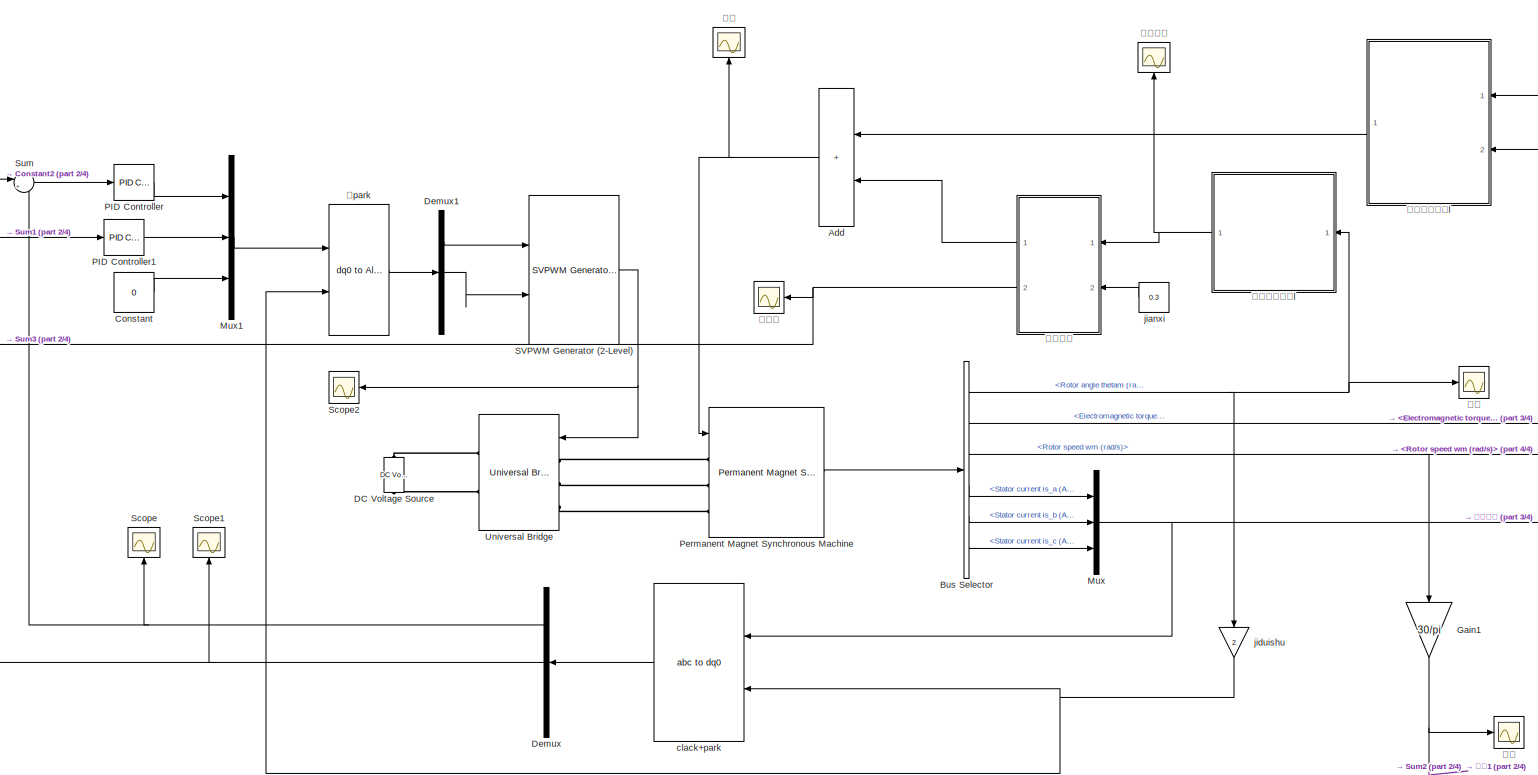
[diagram: root canvas - part 1/4, center side, full height]
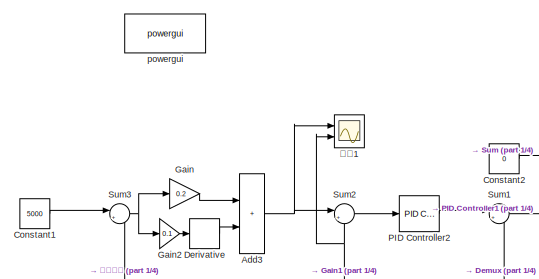
[diagram: root canvas - part 2/4, top left region]
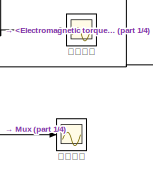
[diagram: root canvas - part 3/4, middle right region]
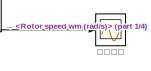
[diagram: root canvas - part 4/4, middle right region]
MODEL slx_32f60f15871e
KIND model
CONFIG AbsTol = auto
CONFIG EnableMultiTasking = off
CONFIG FixedStep = 5e-5
CONFIG MaxStep = auto
CONFIG MinStep = auto
CONFIG RelTol = 1e-3
CONFIG SampleTimeConstraint = Unconstrained
CONFIG SolverName = FixedStepAuto
CONFIG StartTime = 0.0
CONFIG StopTime = 5
WORKSPACE source: mxarray member
WORKSPACE Bv = 0.001086
WORKSPACE L = 0.005
WORKSPACE Tc = 0.0192
WORKSPACE Ts = 0.0387
WORKSPACE Ws = 1
WORKSPACE deta = 1
WORKSPACE ng = 0.9
WORKSPACE ns = 0.9
BLOCK [Sum] Add
  IconShape = rectangular
  Ports = [2, 1]
BLOCK [Sum] Add3
  IconShape = rectangular
  Ports = [2, 1]
BLOCK [BusSelector] Bus Selector
  OutputSignals = Rotor angle thetam (rad),Electromagnetic torque Te (N*m),Rotor speed wm (rad/s),Stator current is_a (A),Stator current is_b (A),Stator current is_c (A)
  Ports = [1, 6]
BLOCK [Constant] Constant
  SampleTime = -1
  Value = 0
  VectorParams1D = off
BLOCK [Constant] Constant1
  Value = 5000
BLOCK [Constant] Constant2
  Value = 0
BLOCK [Reference] DC Voltage Source  REF=powerlib/Electrical Sources/DC Voltage Source
  NameLocation = right
  Ports = [0, 0, 0, 0, 0, 1, 1]
  SourceBlock = powerlib/Electrical Sources/DC Voltage Source
  SourceType = DC Voltage Source
BLOCK [Demux] Demux
  Outputs = 3
  Ports = [1, 3]
BLOCK [Demux] Demux1
  Outputs = 3
  Ports = [1, 3]
BLOCK [Derivative] Derivative
BLOCK [Gain] Gain
  Gain = 0.2
BLOCK [Gain] Gain1
  Gain = 30/pi
  NameLocation = left
BLOCK [Gain] Gain2
  Gain = 0.1
BLOCK [Mux] Mux
  DisplayOption = bar
  Inputs = 3
  Ports = [3, 1]
BLOCK [Mux] Mux1
  DisplayOption = bar
  Inputs = 3
  Ports = [3, 1]
BLOCK [Reference] PID Controller  REF=pid_lib/PID Controller
  Ports = [1, 1]
  SourceBlock = pid_lib/PID Controller
  SourceType = PID 1dof
BLOCK [Reference] PID Controller1  REF=pid_lib/PID Controller
  Ports = [1, 1]
  SourceBlock = pid_lib/PID Controller
  SourceType = PID 1dof
BLOCK [Reference] PID Controller2  REF=pid_lib/PID Controller
  Ports = [1, 1]
  SourceBlock = pid_lib/PID Controller
  SourceType = PID 1dof
BLOCK [Reference] Permanent Magnet Synchronous Machine  REF=powerlib/Machines/Permanent Magnet Synchronous Machine
  Ports = [1, 1, 0, 0, 0, 3]
  SourceBlock = powerlib/Machines/Permanent Magnet Synchronous Machine
  SourceType = Permanent Magnet Synchronous Machine
BLOCK [Reference] SVPWM Generator (2-Level)  REF=powerlib_meascontrol/Pulse & Signal Generators/SVPWM Generator (2-Level)
  Ports = [2, 1]
  SourceBlock = powerlib_meascontrol/Pulse & Signal Generators/SVPWM Generator (2-Level)
  SourceType = SVPWM Generator (2-Level)
BLOCK [Scope] Scope
  Floating = off
  NameLocation = right
  NumInputPorts = 1
  Ports = [1]
  ScopeSpecificationString = Simulink.scopes.TimeScopeBlockCfg('CurrentConfiguration', extmgr.ConfigurationSet(extmgr.Configuration('Core','General UI',true),extmgr.Configuration('Core','Source UI',true),extmgr.Configuration('Sources','WiredSimulink',true,'DataLoggingVariableName','ScopeData5'),extmgr.Configuration('Visuals','Time Domain',true,'SerializedDisplays',{struct('MinYLimReal','-19.37793','MaxYLimReal','29.91479','YL...<+1470ch>
BLOCK [Scope] Scope1
  Floating = off
  NameLocation = right
  NumInputPorts = 1
  Ports = [1]
  ScopeSpecificationString = Simulink.scopes.TimeScopeBlockCfg('CurrentConfiguration', extmgr.ConfigurationSet(extmgr.Configuration('Core','General UI',true),extmgr.Configuration('Core','Source UI',true),extmgr.Configuration('Sources','WiredSimulink',true,'DataLoggingVariableName','ScopeData2'),extmgr.Configuration('Visuals','Time Domain',true,'SerializedDisplays',{struct('MinYLimReal','-7.68628','MaxYLimReal','69.17649','YLa...<+1422ch>
BLOCK [Scope] Scope2
  Floating = off
  NameLocation = top
  NumInputPorts = 1
  Ports = [1]
  ScopeSpecificationString = Simulink.scopes.TimeScopeBlockCfg('CurrentConfiguration', extmgr.ConfigurationSet(extmgr.Configuration('Core','General UI',true),extmgr.Configuration('Core','Source UI',true),extmgr.Configuration('Sources','WiredSimulink',true,'DataLoggingVariableName','ScopeData3'),extmgr.Configuration('Visuals','Time Domain',true,'SerializedDisplays',{struct('MinYLimReal','-0.125','MaxYLimReal','1.125','YLabelRe...<+1622ch>
BLOCK [Sum] Sum
  Inputs = |+-
  Ports = [2, 1]
BLOCK [Sum] Sum1
  Inputs = |+-
  Ports = [2, 1]
BLOCK [Sum] Sum2
  Inputs = |+-
  Ports = [2, 1]
BLOCK [Sum] Sum3
  Inputs = |+-
  Ports = [2, 1]
BLOCK [Reference] Universal Bridge  REF=powerlib/Power Electronics/Universal Bridge
  Ports = [1, 0, 0, 0, 0, 3, 2]
  SourceBlock = powerlib/Power Electronics/Universal Bridge
  SourceType = Universal Bridge
BLOCK [Reference] clack+park  REF=powerlib_meascontrol/Transformations/abc to dq0
  Ports = [2, 1]
  SourceBlock = powerlib_meascontrol/Transformations/abc to dq0
  SourceType = abc to dq0 Transformation
BLOCK [Constant] jianxi
  Value = 0.3
BLOCK [Gain] jiduishu
  Gain = 2
  NameLocation = left
BLOCK [Reference] powergui  REF=powerlib/powergui
  Ports = []
  Priority = 1
  SourceBlock = powerlib/powergui
  SourceType = PSB option menu block
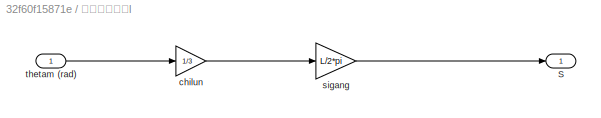
BLOCK [SubSystem] 传动机构模型l
  Ports = [1, 1]
BLOCK [Inport] 传动机构模型l/ thetam (rad)
BLOCK [Outport] 传动机构模型l/S
  VectorParamsAs1DForOutWhenUnconnected = off
BLOCK [Gain] 传动机构模型l/chilun
  Gain = 1/3
BLOCK [Gain] 传动机构模型l/sigang
  Gain = L/2*pi
BLOCK [Reference] 反park  REF=powerlib_meascontrol/Transformations/dq0 to Alpha-Beta-Zero
  Ports = [2, 1]
  SourceBlock = powerlib_meascontrol/Transformations/dq0 to Alpha-Beta-Zero
  SourceType = dq0 to Alpha-Beta-Zero Transformation
BLOCK [Scope] 夹紧力
  Floating = off
  NumInputPorts = 1
  Ports = [1]
  ScopeSpecificationString = Simulink.scopes.TimeScopeBlockCfg('CurrentConfiguration', extmgr.ConfigurationSet(extmgr.Configuration('Core','General UI',true),extmgr.Configuration('Core','Source UI',true),extmgr.Configuration('Sources','WiredSimulink',true),extmgr.Configuration('Visuals','Time Domain',true,'SerializedDisplays',{struct('MinYLimReal','-617.35214','MaxYLimReal','5556.16923','YLabelReal','','MinYLimMag',' 0.00000'...<+1443ch>
BLOCK [Scope] 定子电流
  Floating = off
  NumInputPorts = 1
  Ports = [1]
  ScopeSpecificationString = Simulink.scopes.TimeScopeBlockCfg('CurrentConfiguration', extmgr.ConfigurationSet(extmgr.Configuration('Core','General UI',true),extmgr.Configuration('Core','Source UI',true),extmgr.Configuration('Sources','WiredSimulink',true,'DataLoggingVariableName','ScopeData1'),extmgr.Configuration('Visuals','Time Domain',true,'SerializedDisplays',{struct('MinYLimReal','-76.07517','MaxYLimReal','76.02422','YL...<+1544ch>
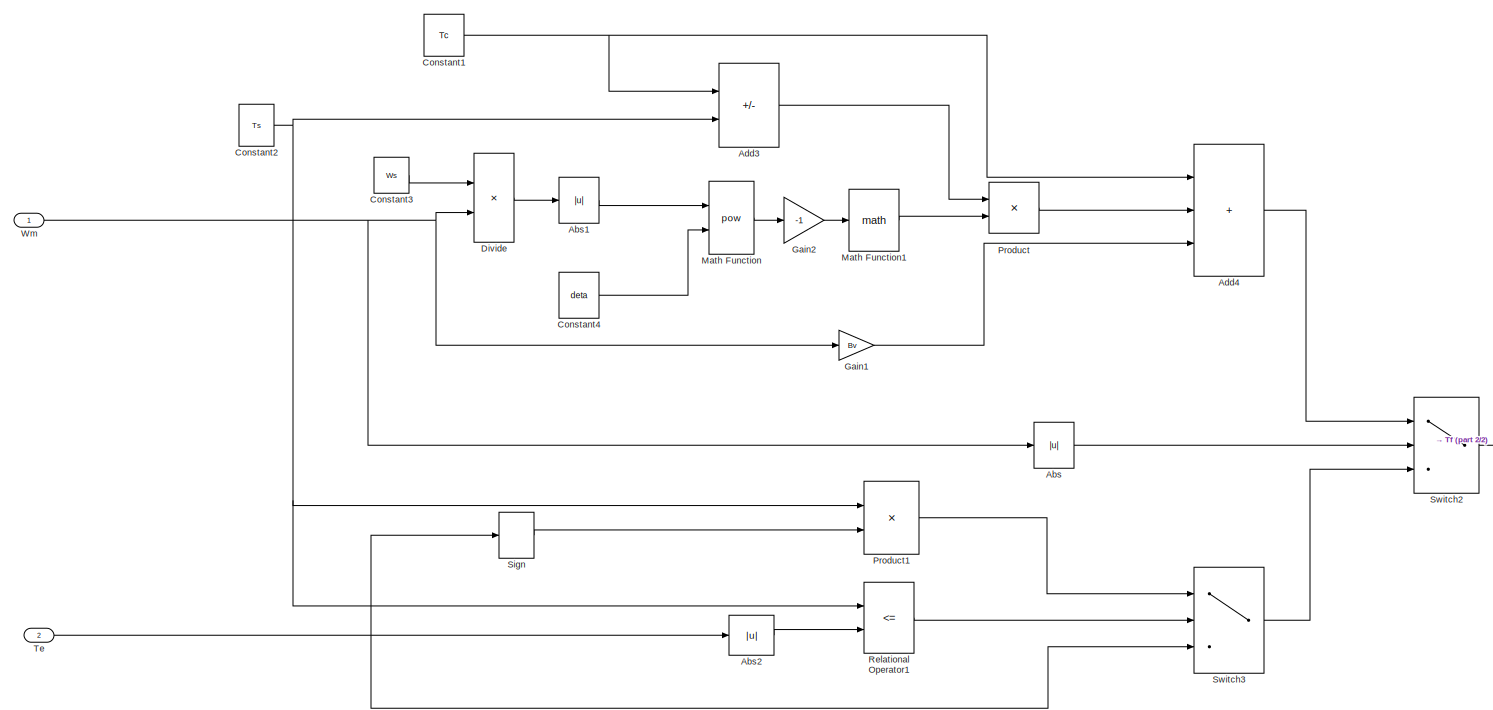
[diagram: 电机摩擦模型l - part 1/2, most of the canvas]
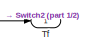
[diagram: 电机摩擦模型l - part 2/2, middle right region]
BLOCK [SubSystem] 电机摩擦模型l
  Ports = [2, 1]
BLOCK [Abs] 电机摩擦模型l/Abs
  SaturateOnIntegerOverflow = off
BLOCK [Abs] 电机摩擦模型l/Abs1
  SaturateOnIntegerOverflow = off
BLOCK [Abs] 电机摩擦模型l/Abs2
  SaturateOnIntegerOverflow = off
BLOCK [Sum] 电机摩擦模型l/Add3
  IconShape = rectangular
  Inputs = -+
  Ports = [2, 1]
BLOCK [Sum] 电机摩擦模型l/Add4
  IconShape = rectangular
  Inputs = +++
  Ports = [3, 1]
BLOCK [Constant] 电机摩擦模型l/Constant1
  Value = Tc
BLOCK [Constant] 电机摩擦模型l/Constant2
  Value = Ts
BLOCK [Constant] 电机摩擦模型l/Constant3
  Value = Ws
BLOCK [Constant] 电机摩擦模型l/Constant4
  Value = deta
BLOCK [Product] 电机摩擦模型l/Divide
  Inputs = /*
  Ports = [2, 1]
BLOCK [Gain] 电机摩擦模型l/Gain1
  Gain = Bv
BLOCK [Gain] 电机摩擦模型l/Gain2
  Gain = -1
BLOCK [Math] 电机摩擦模型l/Math Function
  Operator = pow
  Ports = [2, 1]
  SignedPower = on
BLOCK [Math] 电机摩擦模型l/Math Function1
  Ports = [1, 1]
  SignedPower = on
BLOCK [Product] 电机摩擦模型l/Product
  Ports = [2, 1]
BLOCK [Product] 电机摩擦模型l/Product1
  Ports = [2, 1]
BLOCK [RelationalOperator] 电机摩擦模型l/Relational Operator1
  InputSameDT = off
  Operator = <=
  OutDataTypeStr = boolean
  Ports = [2, 1]
  RndMeth = Simplest
BLOCK [Signum] 电机摩擦模型l/Sign
BLOCK [Switch] 电机摩擦模型l/Switch2
  Criteria = u2 > Threshold
  InputSameDT = off
  SaturateOnIntegerOverflow = off
BLOCK [Switch] 电机摩擦模型l/Switch3
  Criteria = u2 > Threshold
  InputSameDT = off
  SaturateOnIntegerOverflow = off
BLOCK [Inport] 电机摩擦模型l/Te
  Port = 2
BLOCK [Outport] 电机摩擦模型l/Tf
  VectorParamsAs1DForOutWhenUnconnected = off
BLOCK [Inport] 电机摩擦模型l/Wm
BLOCK [Scope] 电磁转矩
  Floating = off
  NumInputPorts = 1
  Ports = [1]
  ScopeSpecificationString = Simulink.scopes.TimeScopeBlockCfg('CurrentConfiguration', extmgr.ConfigurationSet(extmgr.Configuration('Core','General UI',true),extmgr.Configuration('Core','Source UI',true),extmgr.Configuration('Sources','WiredSimulink',true,'DataLoggingVariableName','ScopeData3'),extmgr.Configuration('Visuals','Time Domain',true,'SerializedDisplays',{struct('MinYLimReal','-0.35646','MaxYLimReal','3.2081','YLabe...<+1486ch>
BLOCK [Scope] 螺母位移
  Floating = off
  NameLocation = right
  NumInputPorts = 1
  Ports = [1]
  ScopeSpecificationString = Simulink.scopes.TimeScopeBlockCfg('CurrentConfiguration', extmgr.ConfigurationSet(extmgr.Configuration('Core','General UI',true),extmgr.Configuration('Core','Source UI',true),extmgr.Configuration('Sources','WiredSimulink',true,'DataLoggingVariableName','ScopeData4'),extmgr.Configuration('Visuals','Time Domain',true,'SerializedDisplays',{struct('MinYLimReal','-0.12203','MaxYLimReal','1.09824','YLab...<+1466ch>
BLOCK [Scope] 负载
  Floating = off
  NameLocation = right
  NumInputPorts = 1
  Ports = [1]
  ScopeSpecificationString = Simulink.scopes.TimeScopeBlockCfg('CurrentConfiguration', extmgr.ConfigurationSet(extmgr.Configuration('Core','General UI',true),extmgr.Configuration('Core','Source UI',true),extmgr.Configuration('Sources','WiredSimulink',true,'DataLoggingVariableName','ScopeData1'),extmgr.Configuration('Visuals','Time Domain',true,'SerializedDisplays',{struct('MinYLimReal','-0.31534','MaxYLimReal','2.83806','YLab...<+1460ch>
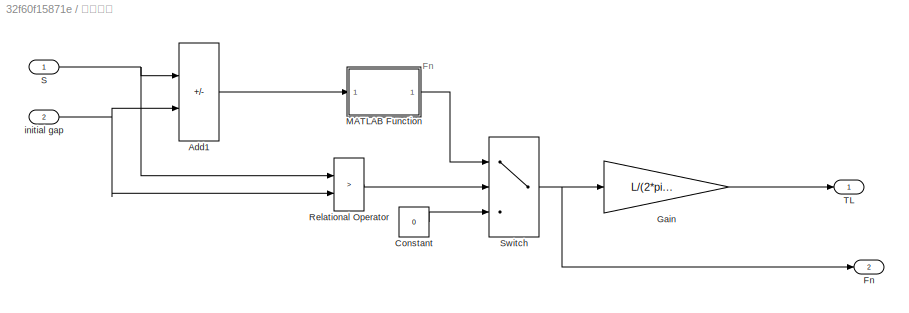
BLOCK [SubSystem] 负载模型
  Ports = [2, 2]
BLOCK [Sum] 负载模型/Add1
  IconShape = rectangular
  Inputs = +-
  Ports = [2, 1]
BLOCK [Constant] 负载模型/Constant
  Value = 0
BLOCK [Outport] 负载模型/Fn
  Port = 2
BLOCK [Gain] 负载模型/Gain
  Gain = L/(2*pi*ns*ng*3)
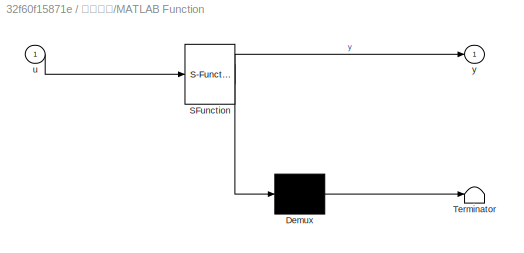
BLOCK [SubSystem] 负载模型/MATLAB Function
  ErrorFcn = Stateflow.Translate.translate
  PermitHierarchicalResolution = ExplicitOnly
  Ports = [1, 1]
  SFBlockType = MATLAB Function
  TreatAsAtomicUnit = on
BLOCK [Demux] 负载模型/MATLAB Function/ Demux 
  Outputs = 1
  Ports = [1, 1]
BLOCK [S-Function] 负载模型/MATLAB Function/ SFunction 
  EnableBusSupport = on
  FunctionName = sf_sfun
  PortCounts = [1 2]
  Ports = [1, 2]
  SFcnIsStateOwnerBlock = off
  SFunctionDeploymentMode = off
  Tag = Stateflow S-Function 2
BLOCK [Terminator] 负载模型/MATLAB Function/ Terminator 
BLOCK [Inport] 负载模型/MATLAB Function/u
BLOCK [Outport] 负载模型/MATLAB Function/y
  VectorParamsAs1DForOutWhenUnconnected = off
BLOCK [RelationalOperator] 负载模型/Relational Operator
  InputSameDT = off
  Operator = >
  OutDataTypeStr = boolean
  Ports = [2, 1]
  RndMeth = Simplest
BLOCK [Inport] 负载模型/S
BLOCK [Switch] 负载模型/Switch
  Criteria = u2 > Threshold
  InputSameDT = off
  SaturateOnIntegerOverflow = off
BLOCK [Outport] 负载模型/TL
  VectorParamsAs1DForOutWhenUnconnected = off
BLOCK [Inport] 负载模型/initial gap
  Port = 2
BLOCK [Scope] 转角
  Floating = off
  NumInputPorts = 1
  Ports = [1]
  ScopeSpecificationString = Simulink.scopes.TimeScopeBlockCfg('CurrentConfiguration', extmgr.ConfigurationSet(extmgr.Configuration('Core','General UI',true),extmgr.Configuration('Core','Source UI',true),extmgr.Configuration('Sources','WiredSimulink',true,'DataLoggingVariableName','ScopeData2'),extmgr.Configuration('Visuals','Time Domain',true,'SerializedDisplays',{struct('MinYLimReal','-46.61079','MaxYLimReal','419.49708','Y...<+1495ch>
BLOCK [Scope] 转角1
  Floating = off
  NumInputPorts = 2
  Ports = [2]
  ScopeSpecificationString = Simulink.scopes.TimeScopeBlockCfg('CurrentConfiguration', extmgr.ConfigurationSet(extmgr.Configuration('Core','General UI',true),extmgr.Configuration('Core','Source UI',true),extmgr.Configuration('Sources','WiredSimulink',true,'DataLoggingVariableName','ScopeData1'),extmgr.Configuration('Visuals','Time Domain',true,'SerializedDisplays',{struct('MinYLimReal','-38.73701','MaxYLimReal','5348.63306','...<+2120ch>
BLOCK [Scope] 转速
  Floating = off
  NumInputPorts = 1
  Ports = [1]
  ScopeSpecificationString = Simulink.scopes.TimeScopeBlockCfg('CurrentConfiguration', extmgr.ConfigurationSet(extmgr.Configuration('Core','General UI',true),extmgr.Configuration('Core','Source UI',true),extmgr.Configuration('Sources','WiredSimulink',true,'DataLoggingVariableName','ScopeData1'),extmgr.Configuration('Visuals','Time Domain',true,'SerializedDisplays',{struct('MinYLimReal','-1334.85852','MaxYLimReal','6455.26345'...<+1484ch>
BLOCK [Scope] 转速弧度
  Floating = off
  NumInputPorts = 1
  Ports = [1]
  ScopeSpecificationString = Simulink.scopes.TimeScopeBlockCfg('CurrentConfiguration', extmgr.ConfigurationSet(extmgr.Configuration('Core','General UI',true),extmgr.Configuration('Core','Source UI',true),extmgr.Configuration('Sources','WiredSimulink',true,'DataLoggingVariableName','ScopeData1'),extmgr.Configuration('Visuals','Time Domain',true,'SerializedDisplays',{struct('MinYLimReal','-16.36928','MaxYLimReal','136.20959','Y...<+1493ch>
ANNOTATION 负载模型: Fn
NET Add3:1 -> Sum2:1, 转角1:1
NET Add:1 -> Permanent Magnet Synchronous Machine:1, 负载:1
NET Bus Selector:1 -> jiduishu:1, 传动机构模型l:1, 转角:1
NET Bus Selector:2 -> 电机摩擦模型l:2, 电磁转矩:1
NET Bus Selector:3 -> Gain1:1, 电机摩擦模型l:1, 转速弧度:1
LINE Bus Selector:4 -> Mux:1
LINE Bus Selector:5 -> Mux:2
LINE Bus Selector:6 -> Mux:3
LINE Constant1:1 -> Sum3:1
LINE Constant2:1 -> Sum:1
LINE Constant:1 -> Mux1:3
LINE Demux1:1 -> SVPWM Generator (2-Level):1
LINE Demux1:2 -> SVPWM Generator (2-Level):2
NET Demux:1 -> Scope:1, Sum:2
NET Demux:2 -> Scope1:1, Sum1:2
LINE Derivative:1 -> Add3:2
NET Gain1:1 -> Sum2:2, 转角1:2, 转速:1
LINE Gain2:1 -> Derivative:1
LINE Gain:1 -> Add3:1
LINE Mux1:1 -> 反park:1
NET Mux:1 -> clack+park:1, 定子电流:1
LINE PID Controller1:1 -> Mux1:2
LINE PID Controller2:1 -> Sum1:1
LINE PID Controller:1 -> Mux1:1
LINE Permanent Magnet Synchronous Machine:1 -> Bus Selector:1
NET SVPWM Generator (2-Level):1 -> Scope2:1, Universal Bridge:1
LINE Sum1:1 -> PID Controller1:1
LINE Sum2:1 -> PID Controller2:1
NET Sum3:1 -> Gain2:1, Gain:1
LINE Sum:1 -> PID Controller:1
LINE clack+park:1 -> Demux:1
LINE jianxi:1 -> 负载模型:2
NET jiduishu:1 -> clack+park:2, 反park:2
LINE 传动机构模型l/ thetam (rad):1 -> 传动机构模型l/chilun:1
LINE 传动机构模型l/chilun:1 -> 传动机构模型l/sigang:1
LINE 传动机构模型l/sigang:1 -> 传动机构模型l/S:1
NET 传动机构模型l:1 -> 螺母位移:1, 负载模型:1
LINE 反park:1 -> Demux1:1
LINE 电机摩擦模型l/Abs1:1 -> 电机摩擦模型l/Math Function:1
LINE 电机摩擦模型l/Abs2:1 -> 电机摩擦模型l/Relational Operator1:2
LINE 电机摩擦模型l/Abs:1 -> 电机摩擦模型l/Switch2:2
LINE 电机摩擦模型l/Add3:1 -> 电机摩擦模型l/Product:1
LINE 电机摩擦模型l/Add4:1 -> 电机摩擦模型l/Switch2:1
NET 电机摩擦模型l/Constant1:1 -> 电机摩擦模型l/Add3:1, 电机摩擦模型l/Add4:1
NET 电机摩擦模型l/Constant2:1 -> 电机摩擦模型l/Add3:2, 电机摩擦模型l/Product1:1, 电机摩擦模型l/Relational Operator1:1
LINE 电机摩擦模型l/Constant3:1 -> 电机摩擦模型l/Divide:1
LINE 电机摩擦模型l/Constant4:1 -> 电机摩擦模型l/Math Function:2
LINE 电机摩擦模型l/Divide:1 -> 电机摩擦模型l/Abs1:1
LINE 电机摩擦模型l/Gain1:1 -> 电机摩擦模型l/Add4:3
LINE 电机摩擦模型l/Gain2:1 -> 电机摩擦模型l/Math Function1:1
LINE 电机摩擦模型l/Math Function1:1 -> 电机摩擦模型l/Product:2
LINE 电机摩擦模型l/Math Function:1 -> 电机摩擦模型l/Gain2:1
LINE 电机摩擦模型l/Product1:1 -> 电机摩擦模型l/Switch3:1
LINE 电机摩擦模型l/Product:1 -> 电机摩擦模型l/Add4:2
LINE 电机摩擦模型l/Relational Operator1:1 -> 电机摩擦模型l/Switch3:2
LINE 电机摩擦模型l/Sign:1 -> 电机摩擦模型l/Product1:2
LINE 电机摩擦模型l/Switch2:1 -> 电机摩擦模型l/Tf:1
LINE 电机摩擦模型l/Switch3:1 -> 电机摩擦模型l/Switch2:3
NET 电机摩擦模型l/Te:1 -> 电机摩擦模型l/Abs2:1, 电机摩擦模型l/Sign:1, 电机摩擦模型l/Switch3:3
NET 电机摩擦模型l/Wm:1 -> 电机摩擦模型l/Abs:1, 电机摩擦模型l/Divide:2, 电机摩擦模型l/Gain1:1
LINE 电机摩擦模型l:1 -> Add:1
LINE 负载模型/Add1:1 -> 负载模型/MATLAB Function:1
LINE 负载模型/Constant:1 -> 负载模型/Switch:3
LINE 负载模型/Gain:1 -> 负载模型/TL:1
LINE 负载模型/MATLAB Function:1 -> 负载模型/Switch:1
LINE 负载模型/Relational Operator:1 -> 负载模型/Switch:2
NET 负载模型/S:1 -> 负载模型/Add1:1, 负载模型/Relational Operator:1
NET 负载模型/Switch:1 -> 负载模型/Fn:1, 负载模型/Gain:1
NET 负载模型/initial gap:1 -> 负载模型/Add1:2, 负载模型/Relational Operator:2
LINE 负载模型:1 -> Add:2
NET 负载模型:2 -> Sum3:2, 夹紧力:1
PLINE DC Voltage Source:LConn1 -- Universal Bridge:RConn2
PLINE DC Voltage Source:RConn1 -- Universal Bridge:RConn1
PLINE Permanent Magnet Synchronous Machine:LConn1 -- Universal Bridge:LConn1
PLINE Permanent Magnet Synchronous Machine:LConn2 -- Universal Bridge:LConn2
PLINE Permanent Magnet Synchronous Machine:LConn3 -- Universal Bridge:LConn3
note: NET lines group one-source signal fan-out (src -> all destinations, sorted); 1:1 wires keep LINE
CHART 负载模型/MATLAB Function states=1 transitions=1
  STATE_LABEL 'eML_blk_kernel()'
  STATE_LABEL 'SCRIPT:\nfunction y = fcn(u)\nif u>0.112\n   y=-1805*u^3+27290*u^2-6036*u+376.2\nelse\n   y=356.767*u\nend'
CHART  states=0 transitions=0
